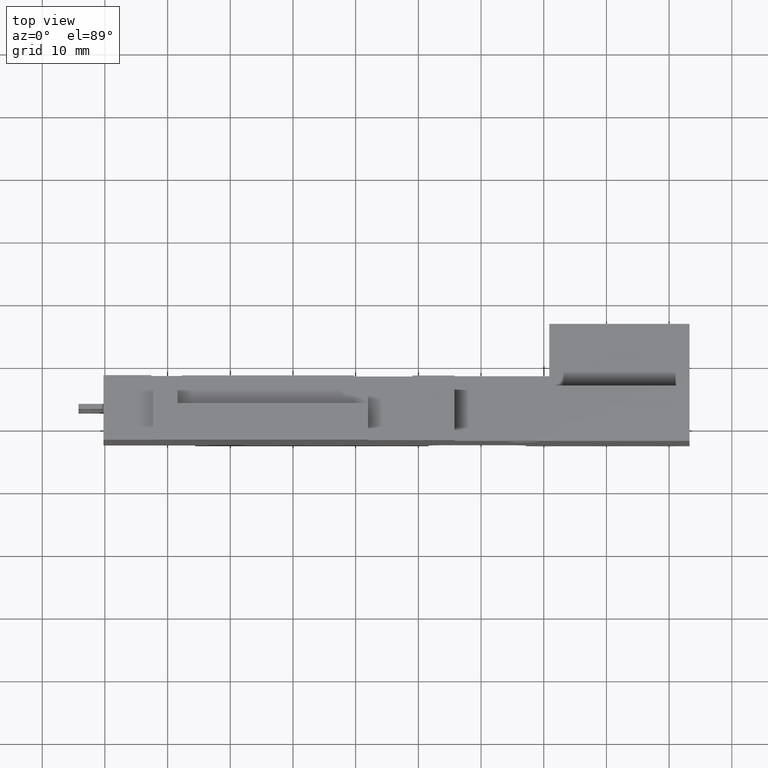
[diagram: clean part render]
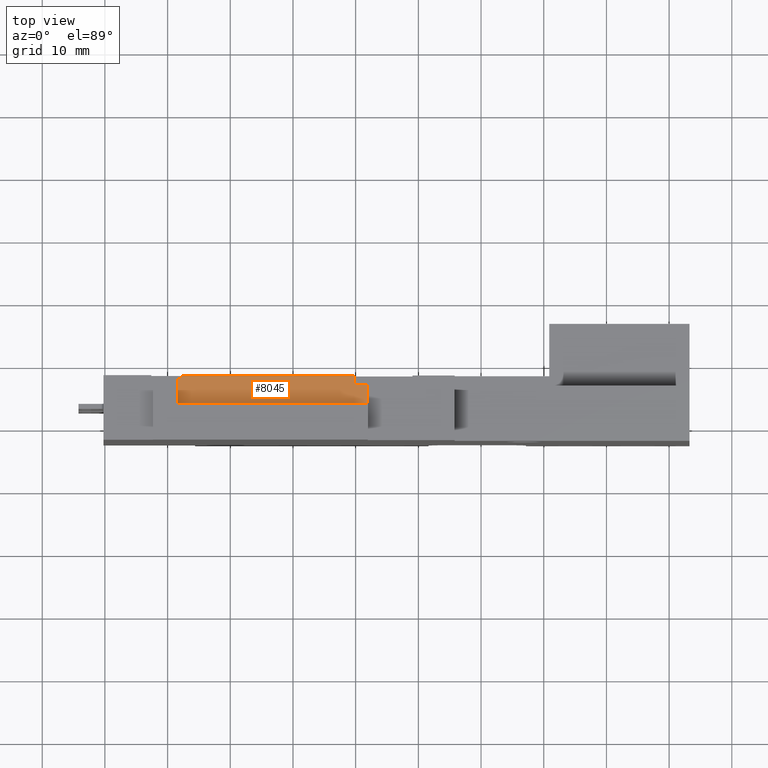
[diagram: same view with one face highlighted and labeled with its STEP entity id]
A machine part, top view. The second image highlights one B-rep face of the part: STEP entity #8045.
In plain terms, the highlighted planar face has unit normal (0, 0, -1).
Its self-contained STEP definition (entity closure, byte-faithful):
#484 = VERTEX_POINT ( 'NONE', #10844 ) ;
#518 = VECTOR ( 'NONE', #5759, 1000.000000000000000 ) ;
#703 = DIRECTION ( 'NONE',  ( -0.000000000000000000, 1.000000000000000000, -0.000000000000000000 ) ) ;
#1096 = CARTESIAN_POINT ( 'NONE',  ( -28.41144799999812420, 3.350000000000960654, 26.91734544328449275 ) ) ;
#1330 = CARTESIAN_POINT ( 'NONE',  ( -27.71144799999812491, 7.350000000000959766, 26.91734544328449275 ) ) ;
#1413 = VERTEX_POINT ( 'NONE', #24530 ) ;
#1425 = EDGE_CURVE ( 'NONE', #23429, #3588, #27055, .T. ) ;
#1565 = ORIENTED_EDGE ( 'NONE', *, *, #7547, .F. ) ;
#1942 = PLANE ( 'NONE',  #26752 ) ;
#2225 = DIRECTION ( 'NONE',  ( -1.000000000000000000, 0.000000000000000000, -0.000000000000000000 ) ) ;
#3045 = ORIENTED_EDGE ( 'NONE', *, *, #15231, .F. ) ;
#3395 = DIRECTION ( 'NONE',  ( -0.000000000000000000, 1.000000000000000000, 0.000000000000000000 ) ) ;
#3588 = VERTEX_POINT ( 'NONE', #7695 ) ;
#4956 = CARTESIAN_POINT ( 'NONE',  ( -0.2732000000021140851, 7.850000000000960654, 26.91734544328449275 ) ) ;
#4996 = LINE ( 'NONE', #1096, #5573 ) ;
#5170 = VECTOR ( 'NONE', #3395, 1000.000000000000000 ) ;
#5433 = EDGE_CURVE ( 'NONE', #1413, #5766, #4996, .T. ) ;
#5573 = VECTOR ( 'NONE', #703, 1000.000000000000000 ) ;
#5664 = CARTESIAN_POINT ( 'NONE',  ( -28.41144799999812420, 7.850000000000960654, 26.91734544328449275 ) ) ;
#5759 = DIRECTION ( 'NONE',  ( -1.000000000000000000, 0.000000000000000000, 0.000000000000000000 ) ) ;
#5766 = VERTEX_POINT ( 'NONE', #20637 ) ;
#6292 = VECTOR ( 'NONE', #14171, 1000.000000000000000 ) ;
#6656 = CARTESIAN_POINT ( 'NONE',  ( -28.41144799999812420, 3.350000000000960654, 26.91734544328449275 ) ) ;
#7547 = EDGE_CURVE ( 'NONE', #24271, #16164, #7999, .T. ) ;
#7695 = CARTESIAN_POINT ( 'NONE',  ( -27.71144799999812491, 7.850000000000960654, 26.91734544328449275 ) ) ;
#7999 = LINE ( 'NONE', #8267, #9772 ) ;
#8045 = ADVANCED_FACE ( 'NONE', ( #26812 ), #1942, .F. ) ;
#8267 = CARTESIAN_POINT ( 'NONE',  ( 0.000000000000000000, 6.350000000000960654, 26.91734544328449275 ) ) ;
#8733 = VERTEX_POINT ( 'NONE', #1330 ) ;
#9308 = EDGE_CURVE ( 'NONE', #8733, #5766, #16812, .T. ) ;
#9772 = VECTOR ( 'NONE', #14237, 1000.000000000000000 ) ;
#10844 = CARTESIAN_POINT ( 'NONE',  ( 1.930106652480390039, 3.350000000000960654, 26.91734544328449275 ) ) ;
#12107 = EDGE_CURVE ( 'NONE', #484, #16164, #16567, .T. ) ;
#12134 = DIRECTION ( 'NONE',  ( 0.000000000000000000, 0.000000000000000000, -1.000000000000000000 ) ) ;
#12766 = ORIENTED_EDGE ( 'NONE', *, *, #12107, .T. ) ;
#13285 = VECTOR ( 'NONE', #20992, 1000.000000000000000 ) ;
#13671 = ORIENTED_EDGE ( 'NONE', *, *, #21570, .F. ) ;
#13721 = ORIENTED_EDGE ( 'NONE', *, *, #5433, .F. ) ;
#13887 = LINE ( 'NONE', #17859, #5170 ) ;
#13896 = VECTOR ( 'NONE', #14731, 1000.000000000000000 ) ;
#14162 = VECTOR ( 'NONE', #17286, 1000.000000000000000 ) ;
#14171 = DIRECTION ( 'NONE',  ( -1.000000000000000000, -0.000000000000000000, -0.000000000000000000 ) ) ;
#14237 = DIRECTION ( 'NONE',  ( 1.000000000000000000, 0.000000000000000000, 0.000000000000000000 ) ) ;
#14731 = DIRECTION ( 'NONE',  ( -0.000000000000000000, 1.000000000000000000, -0.000000000000000000 ) ) ;
#15162 = LINE ( 'NONE', #6656, #14162 ) ;
#15231 = EDGE_CURVE ( 'NONE', #484, #1413, #15162, .T. ) ;
#16164 = VERTEX_POINT ( 'NONE', #17894 ) ;
#16567 = LINE ( 'NONE', #25085, #13896 ) ;
#16812 = LINE ( 'NONE', #25330, #518 ) ;
#17286 = DIRECTION ( 'NONE',  ( -1.000000000000000000, -0.000000000000000000, -0.000000000000000000 ) ) ;
#17859 = CARTESIAN_POINT ( 'NONE',  ( -27.71144799999812491, 7.350000000000959766, 26.91734544328449275 ) ) ;
#17894 = CARTESIAN_POINT ( 'NONE',  ( 1.930106652480390039, 6.350000000000960654, 26.91734544328449275 ) ) ;
#18851 = ORIENTED_EDGE ( 'NONE', *, *, #20212, .F. ) ;
#19982 = ORIENTED_EDGE ( 'NONE', *, *, #9308, .T. ) ;
#20212 = EDGE_CURVE ( 'NONE', #8733, #3588, #13887, .T. ) ;
#20577 = LINE ( 'NONE', #21132, #13285 ) ;
#20637 = CARTESIAN_POINT ( 'NONE',  ( -28.41144799999812420, 7.350000000000959766, 26.91734544328449275 ) ) ;
#20992 = DIRECTION ( 'NONE',  ( 0.000000000000000000, -1.000000000000000000, 0.000000000000000000 ) ) ;
#21132 = CARTESIAN_POINT ( 'NONE',  ( -0.2732000000021131969, 6.350000000000960654, 26.91734544328449275 ) ) ;
#21570 = EDGE_CURVE ( 'NONE', #23429, #24271, #20577, .T. ) ;
#21714 = EDGE_LOOP ( 'NONE', ( #26977, #18851, #19982, #13721, #3045, #12766, #1565, #13671 ) ) ;
#23429 = VERTEX_POINT ( 'NONE', #4956 ) ;
#24271 = VERTEX_POINT ( 'NONE', #26193 ) ;
#24530 = CARTESIAN_POINT ( 'NONE',  ( -28.41144799999812420, 3.350000000000960654, 26.91734544328449275 ) ) ;
#25085 = CARTESIAN_POINT ( 'NONE',  ( 1.930106652480390039, 3.350000000000960654, 26.91734544328449275 ) ) ;
#25330 = CARTESIAN_POINT ( 'NONE',  ( 0.000000000000000000, 7.350000000000959766, 26.91734544328449275 ) ) ;
#26193 = CARTESIAN_POINT ( 'NONE',  ( -0.2732000000378320692, 6.350000000000960654, 26.91734544328449275 ) ) ;
#26752 = AXIS2_PLACEMENT_3D ( 'NONE', #26939, #12134, #2225 ) ;
#26812 = FACE_OUTER_BOUND ( 'NONE', #21714, .T. ) ;
#26939 = CARTESIAN_POINT ( 'NONE',  ( -28.41144799999812420, 3.350000000000960654, 26.91734544328449275 ) ) ;
#26977 = ORIENTED_EDGE ( 'NONE', *, *, #1425, .T. ) ;
#27055 = LINE ( 'NONE', #5664, #6292 ) ;